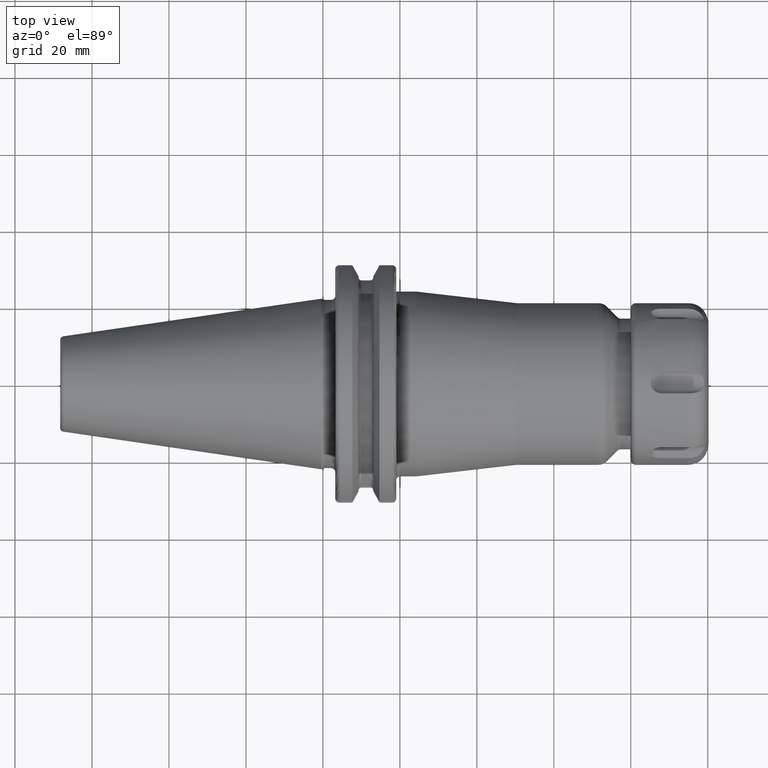
[diagram: clean part render]
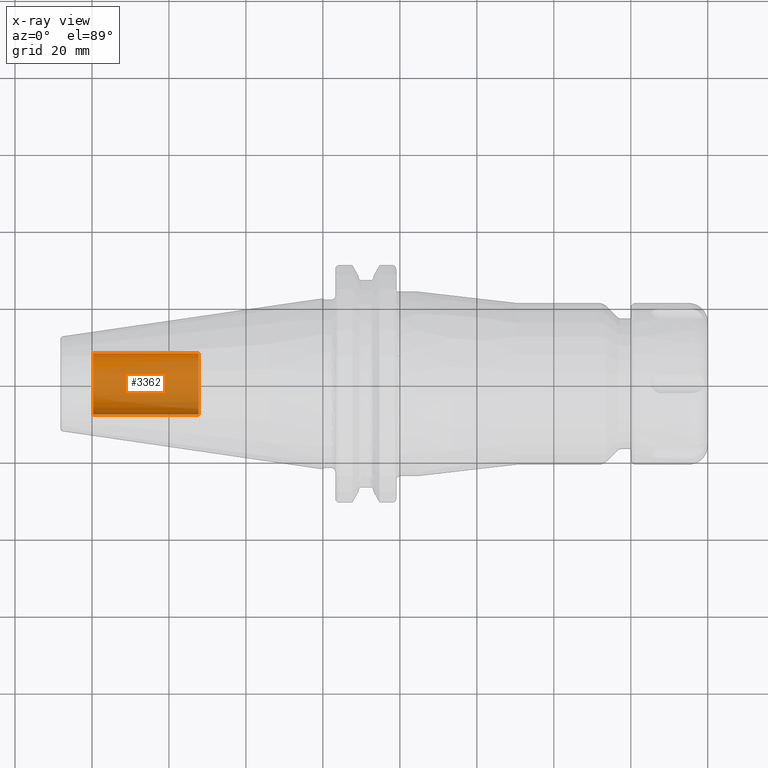
[diagram: x-ray — body ghosted, one internal face saturated and labeled with its STEP entity id]
A machine part, top view, then the same camera in x-ray: the body is ghosted and one INTERNAL B-rep face — a face not visible from any outside direction — is saturated and labeled: STEP entity #3362.
In plain terms, the highlighted cylindrical surface (edge-blend (fillet) strip) has radius 8.0028 mm, axis along (1, 0, 0).
Its self-contained STEP definition (entity closure, byte-faithful):
#3297=CARTESIAN_POINT('',(-5.98E1,0.E0,0.E0));
#3298=DIRECTION('',(-1.E0,0.E0,0.E0));
#3299=DIRECTION('',(0.E0,1.E0,0.E0));
#3300=AXIS2_PLACEMENT_3D('',#3297,#3298,#3299);
#3302=DIRECTION('',(1.E0,0.E0,0.E0));
#3303=VECTOR('',#3302,2.755E1);
#3304=CARTESIAN_POINT('',(-5.98E1,-8.00275E0,0.E0));
#3305=LINE('',#3304,#3303);
#3311=DIRECTION('',(1.E0,0.E0,0.E0));
#3312=VECTOR('',#3311,2.755E1);
#3313=CARTESIAN_POINT('',(-5.98E1,8.00275E0,0.E0));
#3314=LINE('',#3313,#3312);
#3320=CARTESIAN_POINT('',(-3.225E1,0.E0,0.E0));
#3321=DIRECTION('',(1.E0,0.E0,0.E0));
#3322=DIRECTION('',(0.E0,-1.E0,0.E0));
#3323=AXIS2_PLACEMENT_3D('',#3320,#3321,#3322);
#3335=CARTESIAN_POINT('',(-5.98E1,8.00275E0,0.E0));
#3336=CARTESIAN_POINT('',(-5.98E1,-8.00275E0,0.E0));
#3337=VERTEX_POINT('',#3335);
#3338=VERTEX_POINT('',#3336);
#3339=CARTESIAN_POINT('',(-3.225E1,8.00275E0,0.E0));
#3340=CARTESIAN_POINT('',(-3.225E1,-8.00275E0,0.E0));
#3341=VERTEX_POINT('',#3339);
#3342=VERTEX_POINT('',#3340);
#3347=CARTESIAN_POINT('',(-5.98E1,0.E0,0.E0));
#3348=DIRECTION('',(1.E0,0.E0,0.E0));
#3349=DIRECTION('',(0.E0,1.E0,0.E0));
#3350=AXIS2_PLACEMENT_3D('',#3347,#3348,#3349);
#3351=CYLINDRICAL_SURFACE('',#3350,8.00275E0);
#3353=ORIENTED_EDGE('',*,*,#3352,.T.);
#3355=ORIENTED_EDGE('',*,*,#3354,.T.);
#3357=ORIENTED_EDGE('',*,*,#3356,.T.);
#3359=ORIENTED_EDGE('',*,*,#3358,.F.);
#3360=EDGE_LOOP('',(#3353,#3355,#3357,#3359));
#3361=FACE_OUTER_BOUND('',#3360,.F.);
#3362=ADVANCED_FACE('',(#3361),#3351,.T.);
#3301=CIRCLE('',#3300,8.00275E0);
#3324=CIRCLE('',#3323,8.00275E0);
#3352=EDGE_CURVE('',#3337,#3338,#3301,.T.);
#3354=EDGE_CURVE('',#3338,#3342,#3305,.T.);
#3356=EDGE_CURVE('',#3342,#3341,#3324,.T.);
#3358=EDGE_CURVE('',#3337,#3341,#3314,.T.);